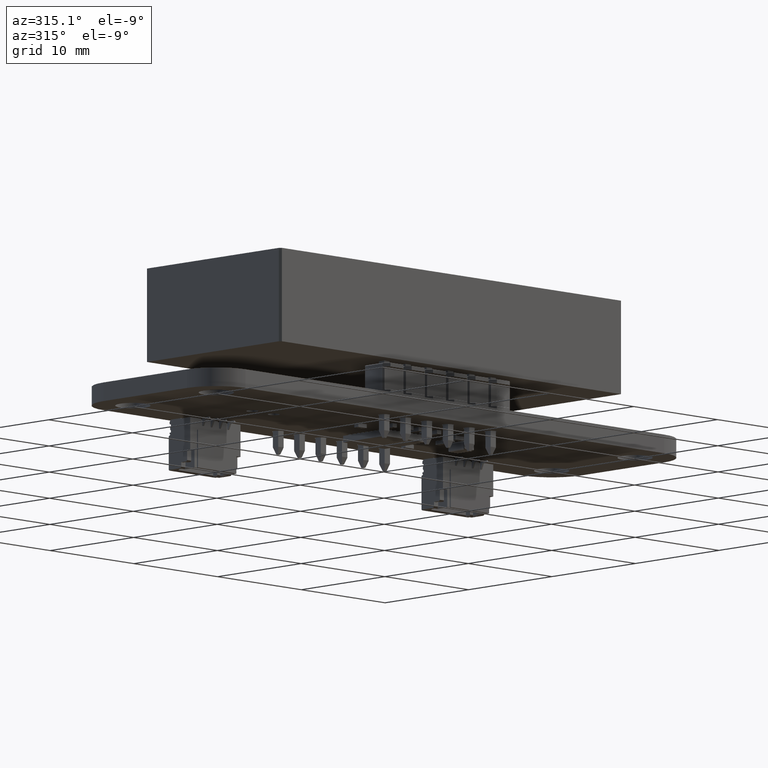
[diagram: clean part render]
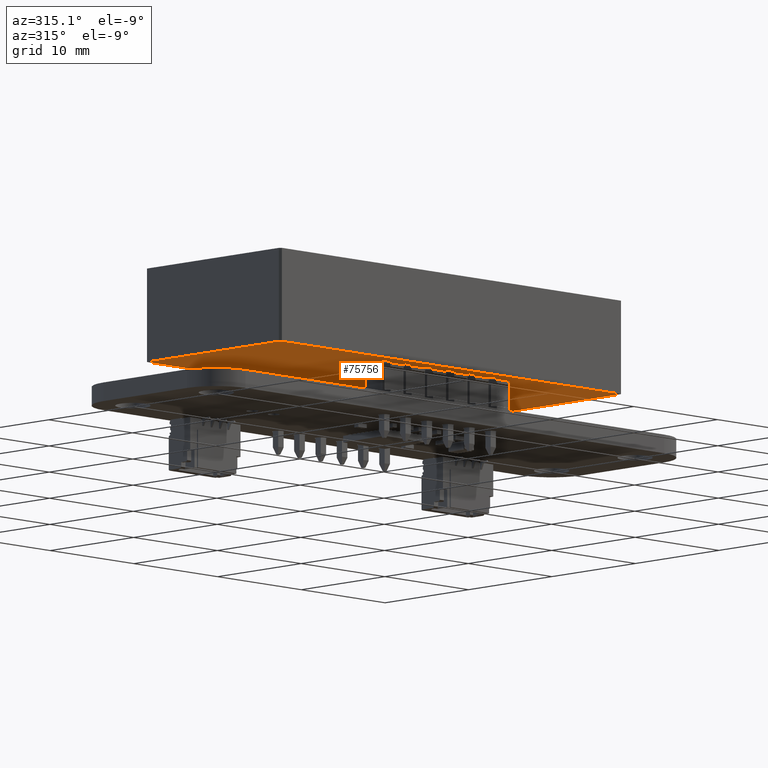
[diagram: same view with one face highlighted and labeled with its STEP entity id]
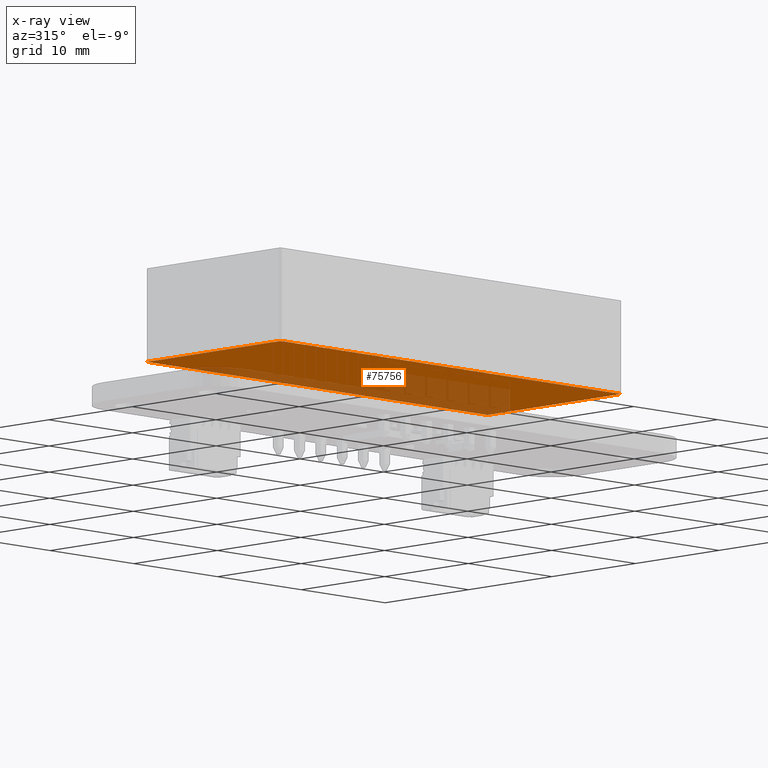
[diagram: x-ray of the same camera — body ghosted, the highlighted face saturated]
A machine part, auxiliary view. The second image highlights one B-rep face of the part: STEP entity #75756.
The next image is the same camera in x-ray: the body ghosted, the highlighted face saturated — about 37% of this face is hidden behind the body in this view.
In plain terms, the highlighted planar face has unit normal (-0, -0, -1).
Its self-contained STEP definition (entity closure, byte-faithful):
#75606 = VERTEX_POINT('',#75607);
#75607 = CARTESIAN_POINT('',(-20.33380236,-7.81434556,0.));
#75624 = VERTEX_POINT('',#75625);
#75625 = CARTESIAN_POINT('',(-20.33380236,8.00000178,0.));
#75631 = EDGE_CURVE('',#75606,#75624,#75632,.T.);
#75632 = LINE('',#75633,#75634);
#75633 = CARTESIAN_POINT('',(-20.33380236,-7.81434556,0.));
#75634 = VECTOR('',#75635,1.);
#75635 = DIRECTION('',(0.,1.,0.));
#75655 = VERTEX_POINT('',#75656);
#75656 = CARTESIAN_POINT('',(20.33380236,8.00000178,0.));
#75662 = EDGE_CURVE('',#75624,#75655,#75663,.T.);
#75663 = LINE('',#75664,#75665);
#75664 = CARTESIAN_POINT('',(-20.33380236,8.00000178,0.));
#75665 = VECTOR('',#75666,1.);
#75666 = DIRECTION('',(1.,0.,0.));
#75686 = VERTEX_POINT('',#75687);
#75687 = CARTESIAN_POINT('',(20.33380236,-7.99999924,0.));
#75693 = EDGE_CURVE('',#75655,#75686,#75694,.T.);
#75694 = LINE('',#75695,#75696);
#75695 = CARTESIAN_POINT('',(20.33380236,8.00000178,0.));
#75696 = VECTOR('',#75697,1.);
#75697 = DIRECTION('',(0.,-1.,0.));
#75717 = VERTEX_POINT('',#75718);
#75718 = CARTESIAN_POINT('',(-20.16619792,-7.99999924,0.));
#75724 = EDGE_CURVE('',#75686,#75717,#75725,.T.);
#75725 = LINE('',#75726,#75727);
#75726 = CARTESIAN_POINT('',(20.33380236,-7.99999924,0.));
#75727 = VECTOR('',#75728,1.);
#75728 = DIRECTION('',(-1.,0.,0.));
#75746 = EDGE_CURVE('',#75717,#75606,#75747,.T.);
#75747 = LINE('',#75748,#75749);
#75748 = CARTESIAN_POINT('',(-20.16619792,-7.99999924,0.));
#75749 = VECTOR('',#75750,1.);
#75750 = DIRECTION('',(-0.670104025308,0.742267199373,0.));
#75756 = ADVANCED_FACE('',(#75757),#75764,.T.);
#75757 = FACE_BOUND('',#75758,.T.);
#75758 = EDGE_LOOP('',(#75759,#75760,#75761,#75762,#75763));
#75759 = ORIENTED_EDGE('',*,*,#75631,.T.);
#75760 = ORIENTED_EDGE('',*,*,#75662,.T.);
#75761 = ORIENTED_EDGE('',*,*,#75693,.T.);
#75762 = ORIENTED_EDGE('',*,*,#75724,.T.);
#75763 = ORIENTED_EDGE('',*,*,#75746,.T.);
#75764 = PLANE('',#75765);
#75765 = AXIS2_PLACEMENT_3D('',#75766,#75767,#75768);
#75766 = CARTESIAN_POINT('',(1.858276480727E-02,7.341174359126E-03,0.));
#75767 = DIRECTION('',(-0.,-0.,-1.));
#75768 = DIRECTION('',(-1.,0.,0.));